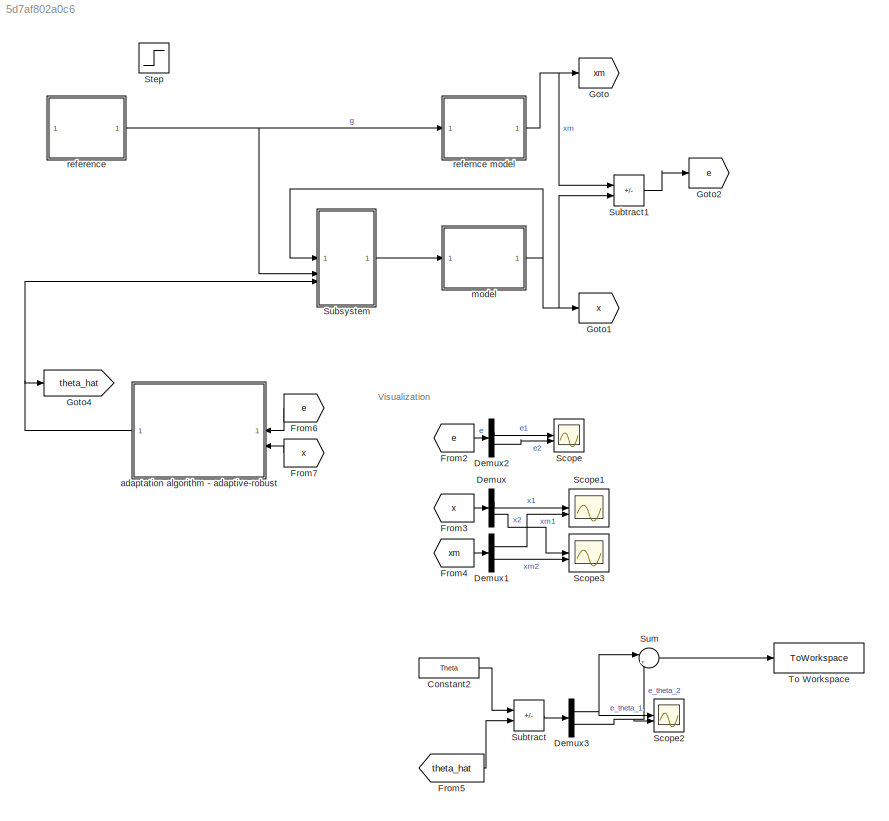
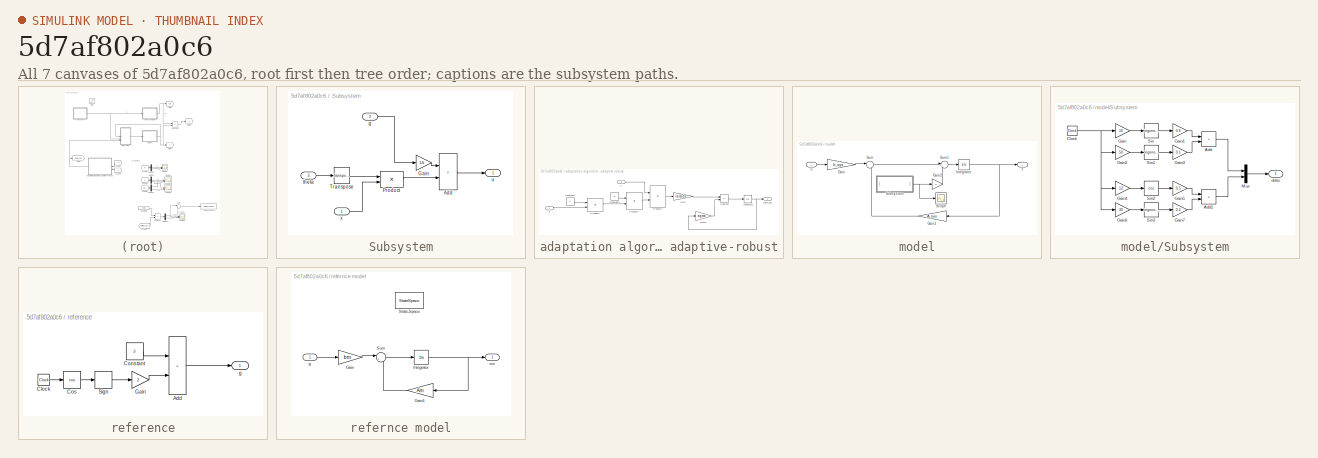
[diagram: thumbnail index - all 7 canvases of the model, root first then tree order]
MODEL slx_5d7af802a0c6
KIND model
CONFIG AbsTol = auto
CONFIG EnableMultiTasking = off
CONFIG FixedStep = auto
CONFIG MaxStep = auto
CONFIG MinStep = auto
CONFIG RelTol = 1e-3
CONFIG SampleTimeConstraint = Unconstrained
CONFIG SolverName = VariableStepAuto
CONFIG StartTime = 0.0
CONFIG StopTime = 50
BLOCK [Constant] Constant2
  Value = Theta
BLOCK [Demux] Demux
  Outputs = 2
BLOCK [Demux] Demux1
  Outputs = 2
BLOCK [Demux] Demux2
  Outputs = 2
BLOCK [Demux] Demux3
  Outputs = 2
BLOCK [From] From2
  GotoTag = e
BLOCK [From] From3
  GotoTag = x
BLOCK [From] From4
  GotoTag = xm
BLOCK [From] From5
  GotoTag = theta_hat
BLOCK [From] From6
  GotoTag = e
BLOCK [From] From7
  GotoTag = x
BLOCK [Goto] Goto
  GotoTag = xm
BLOCK [Goto] Goto1
  GotoTag = x
BLOCK [Goto] Goto2
  GotoTag = e
BLOCK [Goto] Goto4
  GotoTag = theta_hat
BLOCK [Scope] Scope
  Floating = off
  NumInputPorts = 2
  ScopeSpecificationString = Simulink.scopes.TimeScopeBlockCfg('CurrentConfiguration', extmgr.ConfigurationSet(extmgr.Configuration('Core','General UI',true),extmgr.Configuration('Core','Source UI',true),extmgr.Configuration('Sources','WiredSimulink',true),extmgr.Configuration('Visuals','Time Domain',true,'SerializedDisplays',{struct('MinYLimReal','-13.38067','MaxYLimReal','14.31968','YLabelReal','','MinYLimMag','0.00000','Ma...<+1411ch>
BLOCK [Scope] Scope1
  Floating = off
  NumInputPorts = 2
  ScopeSpecificationString = Simulink.scopes.TimeScopeBlockCfg('CurrentConfiguration', extmgr.ConfigurationSet(extmgr.Configuration('Core','General UI',true),extmgr.Configuration('Core','Source UI',true),extmgr.Configuration('Sources','WiredSimulink',true,'DataLoggingVariableName','ScopeData1'),extmgr.Configuration('Visuals','Time Domain',true,'SerializedDisplays',{struct('MinYLimReal','-0.64902','MaxYLimReal','5.84116','YLab...<+1464ch>
BLOCK [Scope] Scope2
  Floating = off
  NumInputPorts = 2
  ScopeSpecificationString = Simulink.scopes.TimeScopeBlockCfg('CurrentConfiguration', extmgr.ConfigurationSet(extmgr.Configuration('Core','General UI',true),extmgr.Configuration('Core','Source UI',true),extmgr.Configuration('Sources','WiredSimulink',true,'DataLoggingVariableName','ScopeData2'),extmgr.Configuration('Visuals','Time Domain',true,'SerializedDisplays',{struct('MinYLimReal','-1070.51616','MaxYLimReal','1033.42874'...<+1474ch>
BLOCK [Scope] Scope3
  Floating = off
  NumInputPorts = 2
  ScopeSpecificationString = Simulink.scopes.TimeScopeBlockCfg('CurrentConfiguration', extmgr.ConfigurationSet(extmgr.Configuration('Core','General UI',true),extmgr.Configuration('Core','Source UI',true),extmgr.Configuration('Sources','WiredSimulink',true,'DataLoggingVariableName','ScopeData1'),extmgr.Configuration('Visuals','Time Domain',true,'SerializedDisplays',{struct('MinYLimReal','-55.05984','MaxYLimReal','65.69379','YL...<+1470ch>
BLOCK [Step] Step
  SampleTime = 0
  Time = 0
BLOCK [SubSystem] Subsystem
BLOCK [Sum] Subsystem/Add
  IconShape = rectangular
BLOCK [Gain] Subsystem/Gain
  Gain = 1/k
BLOCK [Product] Subsystem/Product
  Multiplication = Matrix(*)
BLOCK [Math] Subsystem/Transpose
  Operator = transpose
BLOCK [Inport] Subsystem/g
  Port = 2
BLOCK [Inport] Subsystem/theta
  Port = 3
BLOCK [Outport] Subsystem/u
BLOCK [Inport] Subsystem/x
BLOCK [Sum] Subtract
  IconShape = rectangular
  Inputs = +-
BLOCK [Sum] Subtract1
  IconShape = rectangular
  Inputs = +-
BLOCK [Sum] Sum
  Inputs = |++
BLOCK [ToWorkspace] To Workspace
  FixptAsFi = on
  MaxDataPoints = inf
  SampleTime = -1
  SaveFormat = Timeseries
  VariableName = simout
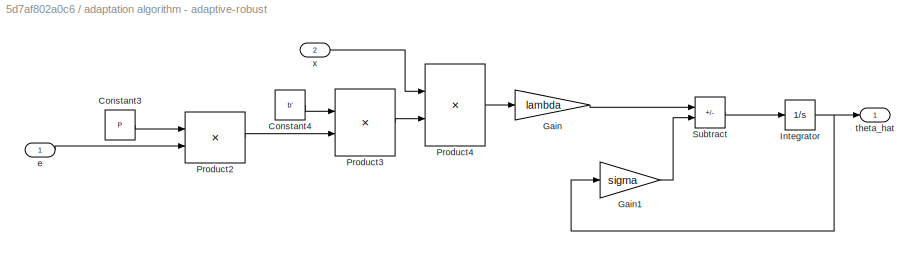
BLOCK [SubSystem] adaptation algorithm - adaptive-robust
BLOCK [Constant] adaptation algorithm - adaptive-robust/Constant3
  Value = P
  VectorParams1D = off
BLOCK [Constant] adaptation algorithm - adaptive-robust/Constant4
  Value = b'
  VectorParams1D = off
BLOCK [Gain] adaptation algorithm - adaptive-robust/Gain
  Gain = lambda
BLOCK [Gain] adaptation algorithm - adaptive-robust/Gain1
  Gain = sigma
BLOCK [Integrator] adaptation algorithm - adaptive-robust/Integrator
BLOCK [Product] adaptation algorithm - adaptive-robust/Product2
  Multiplication = Matrix(*)
BLOCK [Product] adaptation algorithm - adaptive-robust/Product3
  Multiplication = Matrix(*)
BLOCK [Product] adaptation algorithm - adaptive-robust/Product4
  Multiplication = Matrix(*)
BLOCK [Sum] adaptation algorithm - adaptive-robust/Subtract
  IconShape = rectangular
  Inputs = +-
BLOCK [Inport] adaptation algorithm - adaptive-robust/e
BLOCK [Outport] adaptation algorithm - adaptive-robust/theta_hat
  NameLocation = top
BLOCK [Inport] adaptation algorithm - adaptive-robust/x
  Port = 2
BLOCK [SubSystem] model
BLOCK [Gain] model/Gain
  Gain = b_sys
  Multiplication = Matrix(K*u)
BLOCK [Gain] model/Gain1
  Gain = A_sys
  Multiplication = Matrix(K*u)
BLOCK [Gain] model/Gain2
BLOCK [Integrator] model/Integrator
  InitialCondition = [0;0]
BLOCK [Scope] model/Scope
  Floating = off
  NumInputPorts = 1
  ScopeSpecificationString = Simulink.scopes.TimeScopeBlockCfg('CurrentConfiguration', extmgr.ConfigurationSet(extmgr.Configuration('Core','General UI',true),extmgr.Configuration('Core','Source UI',true),extmgr.Configuration('Sources','WiredSimulink',true,'DataLoggingVariableName','ScopeData1'),extmgr.Configuration('Visuals','Time Domain',true,'SerializedDisplays',{struct('MinYLimReal','-0.875','MaxYLimReal','0.87499','YLabel...<+1406ch>
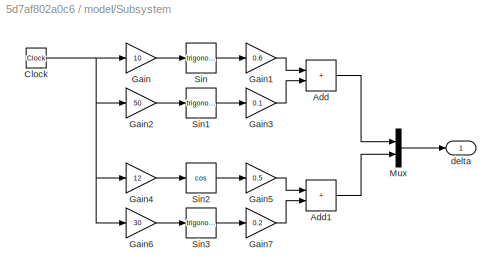
BLOCK [SubSystem] model/Subsystem
BLOCK [Sum] model/Subsystem/Add
  IconShape = rectangular
BLOCK [Sum] model/Subsystem/Add1
  IconShape = rectangular
BLOCK [Clock] model/Subsystem/Clock
BLOCK [Gain] model/Subsystem/Gain
  Gain = 10
BLOCK [Gain] model/Subsystem/Gain1
  Gain = 0.6
BLOCK [Gain] model/Subsystem/Gain2
  Gain = 50
BLOCK [Gain] model/Subsystem/Gain3
  Gain = 0.1
BLOCK [Gain] model/Subsystem/Gain4
  Gain = 12
BLOCK [Gain] model/Subsystem/Gain5
  Gain = 0.5
BLOCK [Gain] model/Subsystem/Gain6
  Gain = 30
BLOCK [Gain] model/Subsystem/Gain7
  Gain = 0.2
BLOCK [Mux] model/Subsystem/Mux
  DisplayOption = bar
  Inputs = 2
BLOCK [Trigonometry] model/Subsystem/Sin
BLOCK [Trigonometry] model/Subsystem/Sin1
BLOCK [Trigonometry] model/Subsystem/Sin2
  Operator = cos
BLOCK [Trigonometry] model/Subsystem/Sin3
BLOCK [Outport] model/Subsystem/delta
BLOCK [Sum] model/Sum
  Inputs = |++
BLOCK [Sum] model/Sum1
  Inputs = |++
BLOCK [Inport] model/u
BLOCK [Outport] model/x
BLOCK [SubSystem] reference
BLOCK [Sum] reference/Add
  IconShape = rectangular
BLOCK [Clock] reference/Clock
BLOCK [Constant] reference/Constant
  Value = 3
BLOCK [Trigonometry] reference/Cos
  Operator = cos
BLOCK [Gain] reference/Gain
  Gain = 2
BLOCK [Signum] reference/Sign
BLOCK [Outport] reference/g
BLOCK [SubSystem] refernce model
BLOCK [Gain] refernce model/Gain
  Gain = bm
  Multiplication = Matrix(K*u)
BLOCK [Gain] refernce model/Gain1
  Gain = Am
  Multiplication = Matrix(K*u)
BLOCK [Integrator] refernce model/Integrator
  InitialCondition = [0;0]
BLOCK [StateSpace] refernce model/State-Space
  A = Am
  B = bm
  C = cm
  Commented = on
  D = 0
  InitialCondition = 0
BLOCK [Sum] refernce model/Sum
  Inputs = |++
BLOCK [Inport] refernce model/g
BLOCK [Outport] refernce model/xm
ANNOTATION (root): Visualization
LINE Constant2:1 -> Subtract:1
LINE Demux1:1 -> Scope1:2
LINE Demux1:2 -> Scope3:2
LINE Demux2:1 -> Scope:1
LINE Demux2:2 -> Scope:2
NET Demux3:1 -> Scope2:1, Sum:1
NET Demux3:2 -> Scope2:2, Sum:2
LINE Demux:1 -> Scope1:1
LINE Demux:2 -> Scope3:1
LINE From2:1 -> Demux2:1
LINE From3:1 -> Demux:1
LINE From4:1 -> Demux1:1
LINE From5:1 -> Subtract:2
LINE From6:1 -> adaptation algorithm - adaptive-robust:1
LINE From7:1 -> adaptation algorithm - adaptive-robust:2
LINE Subsystem/Add:1 -> Subsystem/u:1
LINE Subsystem/Gain:1 -> Subsystem/Add:1
LINE Subsystem/Product:1 -> Subsystem/Add:2
LINE Subsystem/Transpose:1 -> Subsystem/Product:1
LINE Subsystem/g:1 -> Subsystem/Gain:1
LINE Subsystem/theta:1 -> Subsystem/Transpose:1
LINE Subsystem/x:1 -> Subsystem/Product:2
LINE Subsystem:1 -> model:1
LINE Subtract1:1 -> Goto2:1
LINE Subtract:1 -> Demux3:1
LINE Sum:1 -> To Workspace:1
LINE adaptation algorithm - adaptive-robust/Constant3:1 -> adaptation algorithm - adaptive-robust/Product2:1
LINE adaptation algorithm - adaptive-robust/Constant4:1 -> adaptation algorithm - adaptive-robust/Product3:1
LINE adaptation algorithm - adaptive-robust/Gain1:1 -> adaptation algorithm - adaptive-robust/Subtract:2
LINE adaptation algorithm - adaptive-robust/Gain:1 -> adaptation algorithm - adaptive-robust/Subtract:1
NET adaptation algorithm - adaptive-robust/Integrator:1 -> adaptation algorithm - adaptive-robust/Gain1:1, adaptation algorithm - adaptive-robust/theta_hat:1
LINE adaptation algorithm - adaptive-robust/Product2:1 -> adaptation algorithm - adaptive-robust/Product3:2
LINE adaptation algorithm - adaptive-robust/Product3:1 -> adaptation algorithm - adaptive-robust/Product4:2
LINE adaptation algorithm - adaptive-robust/Product4:1 -> adaptation algorithm - adaptive-robust/Gain:1
LINE adaptation algorithm - adaptive-robust/Subtract:1 -> adaptation algorithm - adaptive-robust/Integrator:1
LINE adaptation algorithm - adaptive-robust/e:1 -> adaptation algorithm - adaptive-robust/Product2:2
LINE adaptation algorithm - adaptive-robust/x:1 -> adaptation algorithm - adaptive-robust/Product4:1
NET adaptation algorithm - adaptive-robust:1 -> Goto4:1, Subsystem:3
LINE model/Gain1:1 -> model/Sum:2
LINE model/Gain2:1 -> model/Sum1:2
LINE model/Gain:1 -> model/Sum:1
NET model/Integrator:1 -> model/Gain1:1, model/x:1
LINE model/Subsystem/Add1:1 -> model/Subsystem/Mux:2
LINE model/Subsystem/Add:1 -> model/Subsystem/Mux:1
NET model/Subsystem/Clock:1 -> model/Subsystem/Gain2:1, model/Subsystem/Gain4:1, model/Subsystem/Gain6:1, model/Subsystem/Gain:1
LINE model/Subsystem/Gain1:1 -> model/Subsystem/Add:1
LINE model/Subsystem/Gain2:1 -> model/Subsystem/Sin1:1
LINE model/Subsystem/Gain3:1 -> model/Subsystem/Add:2
LINE model/Subsystem/Gain4:1 -> model/Subsystem/Sin2:1
LINE model/Subsystem/Gain5:1 -> model/Subsystem/Add1:1
LINE model/Subsystem/Gain6:1 -> model/Subsystem/Sin3:1
LINE model/Subsystem/Gain7:1 -> model/Subsystem/Add1:2
LINE model/Subsystem/Gain:1 -> model/Subsystem/Sin:1
LINE model/Subsystem/Mux:1 -> model/Subsystem/delta:1
LINE model/Subsystem/Sin1:1 -> model/Subsystem/Gain3:1
LINE model/Subsystem/Sin2:1 -> model/Subsystem/Gain5:1
LINE model/Subsystem/Sin3:1 -> model/Subsystem/Gain7:1
LINE model/Subsystem/Sin:1 -> model/Subsystem/Gain1:1
NET model/Subsystem:1 -> model/Gain2:1, model/Scope:1
LINE model/Sum1:1 -> model/Integrator:1
LINE model/Sum:1 -> model/Sum1:1
LINE model/u:1 -> model/Gain:1
NET model:1 -> Goto1:1, Subsystem:1, Subtract1:2
LINE reference/Add:1 -> reference/g:1
LINE reference/Clock:1 -> reference/Cos:1
LINE reference/Constant:1 -> reference/Add:1
LINE reference/Cos:1 -> reference/Sign:1
LINE reference/Gain:1 -> reference/Add:2
LINE reference/Sign:1 -> reference/Gain:1
NET reference:1 -> Subsystem:2, refernce model:1
LINE refernce model/Gain1:1 -> refernce model/Sum:2
LINE refernce model/Gain:1 -> refernce model/Sum:1
NET refernce model/Integrator:1 -> refernce model/Gain1:1, refernce model/xm:1
LINE refernce model/Sum:1 -> refernce model/Integrator:1
LINE refernce model/g:1 -> refernce model/Gain:1
NET refernce model:1 -> Goto:1, Subtract1:1
note: NET lines group one-source signal fan-out (src -> all destinations, sorted); 1:1 wires keep LINE
